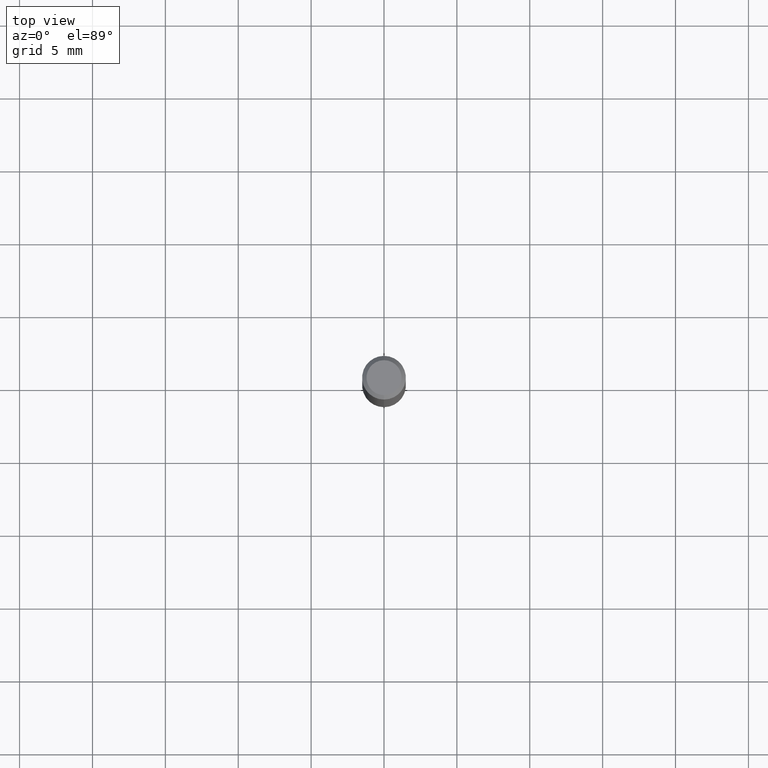
[diagram: clean part render]
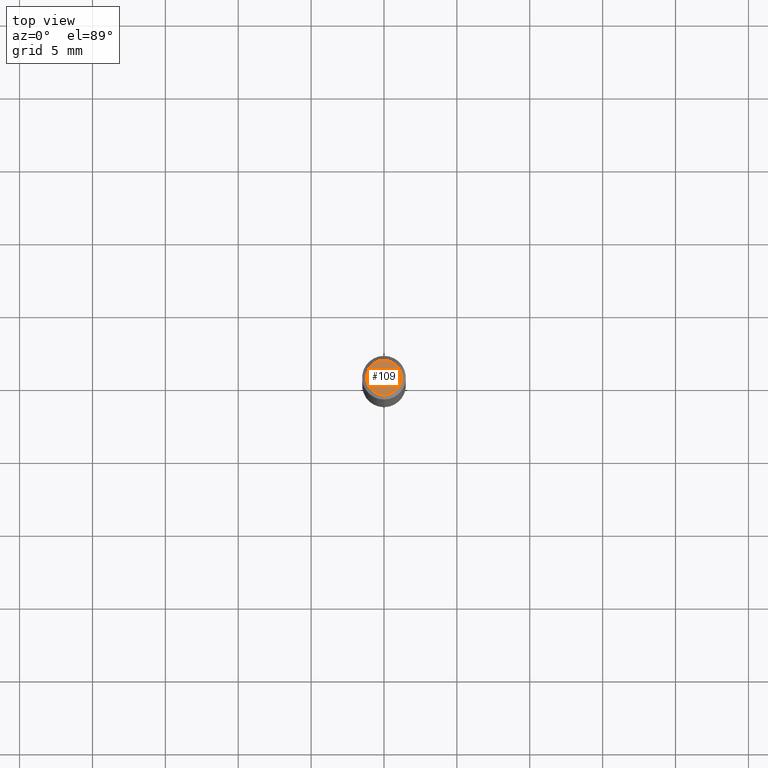
[diagram: same view with one face highlighted and labeled with its STEP entity id]
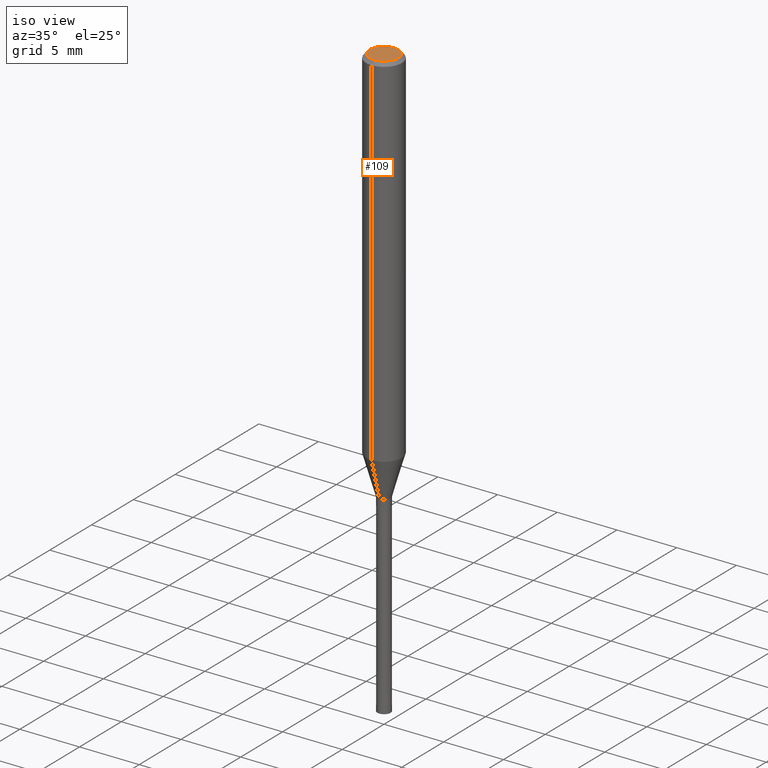
[diagram: same view with one face highlighted and labeled with its STEP entity id]
A machine part, top view. The second image highlights one B-rep face of the part: STEP entity #109.
A second angle (iso view) of the same face is appended — the face is thin or edge-on in the first view.
In plain terms, the highlighted planar face has unit normal (-0, 0, 1).
Its self-contained STEP definition (entity closure, byte-faithful):
#109=ADVANCED_FACE('',(#246),#247,.T.);
#151=EDGE_CURVE('',#165,#175,#293,.T.);
#165=VERTEX_POINT('',#308);
#175=VERTEX_POINT('',#319);
#191=EDGE_CURVE('',#175,#165,#338,.T.);
#246=FACE_OUTER_BOUND('',#390,.T.);
#247=PLANE('',#391);
#293=CIRCLE('',#451,1.2);
#308=CARTESIAN_POINT('',(0.0,1.2,0.0));
#319=CARTESIAN_POINT('',(1.46952762458685E-016,-1.2,0.0));
#338=CIRCLE('',#514,1.2);
#390=EDGE_LOOP('',(#556,#557));
#391=AXIS2_PLACEMENT_3D('',#558,#559,#560);
#451=AXIS2_PLACEMENT_3D('',#612,#613,#614);
#514=AXIS2_PLACEMENT_3D('',#670,#671,#672);
#556=ORIENTED_EDGE('',*,*,#151,.F.);
#557=ORIENTED_EDGE('',*,*,#191,.F.);
#558=CARTESIAN_POINT('',(0.0,0.6,0.0));
#559=DIRECTION('',(-0.0,0.0,1.0));
#560=DIRECTION('',(0.0,-1.0,0.0));
#612=CARTESIAN_POINT('',(0.0,0.0,0.0));
#613=DIRECTION('',(0.0,0.0,-1.0));
#614=DIRECTION('',(0.0,1.0,0.0));
#670=CARTESIAN_POINT('',(0.0,0.0,0.0));
#671=DIRECTION('',(0.0,0.0,-1.0));
#672=DIRECTION('',(0.0,1.0,0.0));